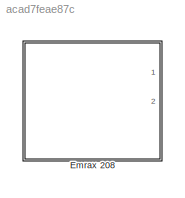
MODEL slx_acad7feae87c
KIND library
CONFIG AbsTol = auto
CONFIG EnableMultiTasking = off
CONFIG FixedStep = auto
CONFIG MaxStep = auto
CONFIG MinStep = auto
CONFIG RelTol = 1e-3
CONFIG SampleTimeConstraint = Unconstrained
CONFIG Solver = VariableStepAuto
CONFIG SolverName = VariableStepAuto
CONFIG StartTime = 0.0
CONFIG StopTime = 10.0
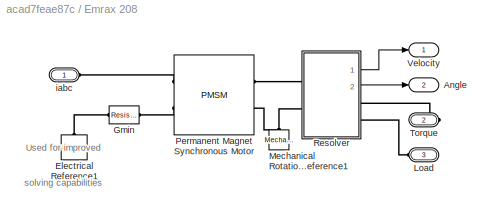
BLOCK [SubSystem] Emrax 208
  Ports = [0, 2, 0, 0, 0, 2, 1]
  RequestExecContextInheritance = off
BLOCK [Outport] Emrax 208/Angle
  IconDisplay = Port number
  Port = 2
BLOCK [Reference] Emrax 208/Electrical Reference1  REF=fl_lib/Electrical/Electrical Elements/Electrical Reference
  Ports = [0, 0, 0, 0, 0, 1]
  SourceBlock = fl_lib/Electrical/Electrical Elements/Electrical Reference
  SourceProductBaseCode = SS
  SourceProductName = Simscape
  SourceType = Electrical Reference
BLOCK [Reference] Emrax 208/Gmin  REF=fl_lib/Electrical/Electrical Elements/Resistor
  Ports = [0, 0, 0, 0, 0, 1, 1]
  SourceBlock = fl_lib/Electrical/Electrical Elements/Resistor
  SourceProductBaseCode = SS
  SourceProductName = Simscape
  SourceType = Resistor
BLOCK [PMIOPort] Emrax 208/Load
  Port = 3
  Side = Left
BLOCK [Reference] Emrax 208/Mechanical Rotational Reference1  REF=fl_lib/Mechanical/Rotational Elements/Mechanical
Rotational Reference
  Ports = [0, 0, 0, 0, 0, 1]
  SourceBlock = fl_lib/Mechanical/Rotational Elements/Mechanical\nRotational Reference
  SourceProductBaseCode = SS
  SourceProductName = Simscape
  SourceType = Mechanical\nRotational Reference
BLOCK [Reference] Emrax 208/Permanent Magnet Synchronous Motor  REF=ee_lib/Electromechanical/Permanent Magnet/PMSM
  Ports = [0, 0, 0, 0, 0, 2, 2]
  SourceBlock = ee_lib/Electromechanical/Permanent Magnet/PMSM
  SourceProductBaseCode = PS
  SourceProductName = Simscape Electrical
  SourceType = PMSM
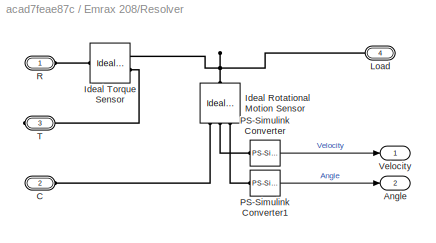
BLOCK [SubSystem] Emrax 208/Resolver
  Ports = [0, 2, 0, 0, 0, 2, 2]
  RequestExecContextInheritance = off
BLOCK [Outport] Emrax 208/Resolver/Angle
  IconDisplay = Port number
  Port = 2
BLOCK [PMIOPort] Emrax 208/Resolver/C
  Port = 2
  Side = Left
BLOCK [Reference] Emrax 208/Resolver/Ideal Rotational Motion Sensor  REF=fl_lib/Mechanical/Mechanical Sensors/Ideal Rotational
Motion Sensor
  Ports = [0, 0, 0, 0, 0, 1, 3]
  SourceBlock = fl_lib/Mechanical/Mechanical Sensors/Ideal Rotational\nMotion Sensor
  SourceProductName = Foundation Library
  SourceType = Ideal Rotational\nMotion Sensor
BLOCK [Reference] Emrax 208/Resolver/Ideal Torque Sensor  REF=fl_lib/Mechanical/Mechanical Sensors/Ideal Torque Sensor
  Ports = [0, 0, 0, 0, 0, 1, 2]
  SourceBlock = fl_lib/Mechanical/Mechanical Sensors/Ideal Torque Sensor
  SourceProductName = Foundation Library
  SourceType = Ideal Torque Sensor
BLOCK [PMIOPort] Emrax 208/Resolver/Load
  Port = 4
  Side = Right
BLOCK [Reference] Emrax 208/Resolver/PS-Simulink Converter  REF=nesl_utility/PS-Simulink
Converter
  Ports = [0, 1, 0, 0, 0, 1]
  SourceBlock = nesl_utility/PS-Simulink\nConverter
  SourceProductBaseCode = SS
  SourceProductName = Simscape
  SourceType = PS-Simulink\nConverter
BLOCK [Reference] Emrax 208/Resolver/PS-Simulink Converter1  REF=nesl_utility/PS-Simulink
Converter
  Ports = [0, 1, 0, 0, 0, 1]
  SourceBlock = nesl_utility/PS-Simulink\nConverter
  SourceProductBaseCode = SS
  SourceProductName = Simscape
  SourceType = PS-Simulink\nConverter
BLOCK [PMIOPort] Emrax 208/Resolver/R
  Side = Left
BLOCK [PMIOPort] Emrax 208/Resolver/T
  Port = 3
  Side = Right
BLOCK [Outport] Emrax 208/Resolver/Velocity
  IconDisplay = Port number
BLOCK [PMIOPort] Emrax 208/Torque
  Port = 2
  Side = Right
BLOCK [Outport] Emrax 208/Velocity
  IconDisplay = Port number
BLOCK [PMIOPort] Emrax 208/iabc
  Side = Left
ANNOTATION Emrax 208: Used for improved solving capabilities
LINE Emrax 208/Resolver/PS-Simulink Converter1:1 -> Emrax 208/Resolver/Angle:1
LINE Emrax 208/Resolver/PS-Simulink Converter:1 -> Emrax 208/Resolver/Velocity:1
LINE Emrax 208/Resolver:1 -> Emrax 208/Velocity:1
LINE Emrax 208/Resolver:2 -> Emrax 208/Angle:1
PLINE Emrax 208/Electrical Reference1:LConn1 -- Emrax 208/Gmin:LConn1
PLINE Emrax 208/Gmin:RConn1 -- Emrax 208/Permanent Magnet Synchronous Motor:LConn2
PLINE Emrax 208/Load:RConn1 -- Emrax 208/Resolver:RConn2
PNET net1: Emrax 208/Mechanical Rotational Reference1:LConn1 -- Emrax 208/Permanent Magnet Synchronous Motor:RConn2 -- Emrax 208/Resolver:LConn2
PLINE Emrax 208/Permanent Magnet Synchronous Motor:LConn1 -- Emrax 208/iabc:RConn1
PLINE Emrax 208/Permanent Magnet Synchronous Motor:RConn1 -- Emrax 208/Resolver:LConn1
PLINE Emrax 208/Resolver/C:RConn1 -- Emrax 208/Resolver/Ideal Rotational Motion Sensor:RConn1
PNET net2: Emrax 208/Resolver/Ideal Rotational Motion Sensor:LConn1 -- Emrax 208/Resolver/Ideal Torque Sensor:RConn1 -- Emrax 208/Resolver/Load:RConn1
PLINE Emrax 208/Resolver/Ideal Rotational Motion Sensor:RConn2 -- Emrax 208/Resolver/PS-Simulink Converter:LConn1
PLINE Emrax 208/Resolver/Ideal Rotational Motion Sensor:RConn3 -- Emrax 208/Resolver/PS-Simulink Converter1:LConn1
PLINE Emrax 208/Resolver/Ideal Torque Sensor:LConn1 -- Emrax 208/Resolver/R:RConn1
PLINE Emrax 208/Resolver/Ideal Torque Sensor:RConn2 -- Emrax 208/Resolver/T:RConn1
PLINE Emrax 208/Resolver:RConn1 -- Emrax 208/Torque:RConn1
note: PNET lines group multi-terminal physical nets as a canonical sorted terminal list (undirected conserving connections); 2-terminal nets keep the pairwise PLINE form
